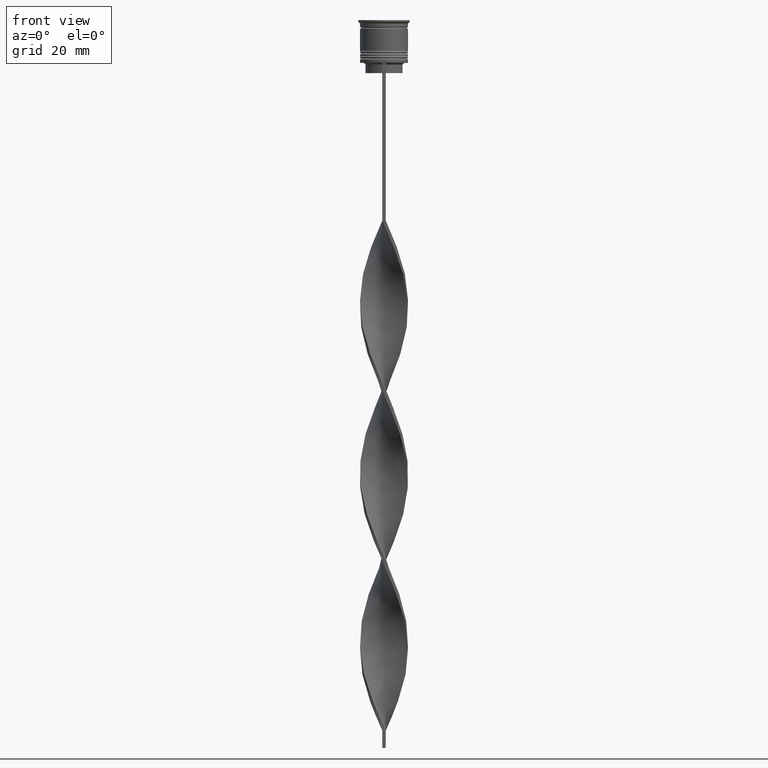
[diagram: clean part render]
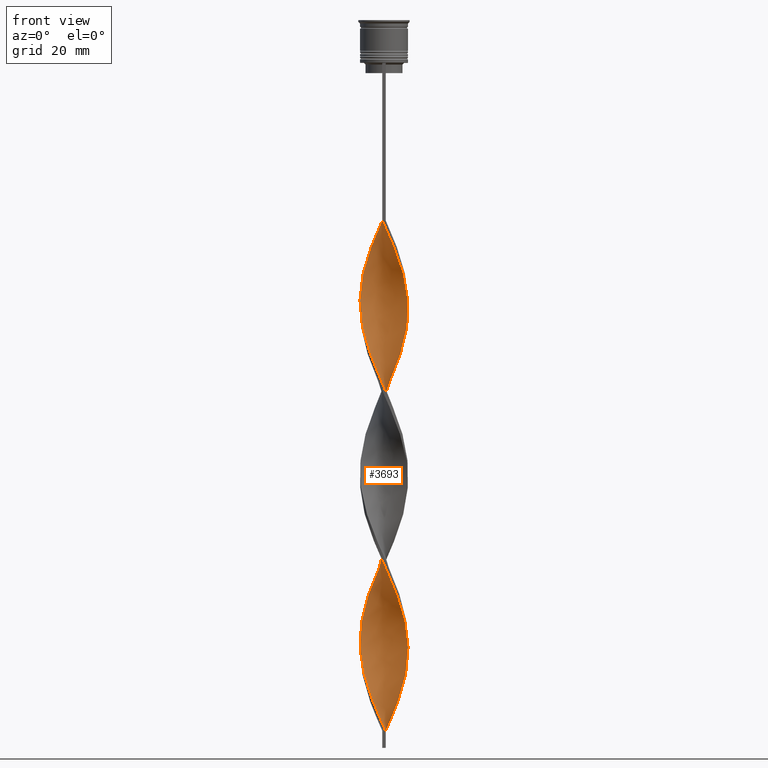
[diagram: same view with one face highlighted and labeled with its STEP entity id]
A machine part, front view. The second image highlights one B-rep face of the part: STEP entity #3693.
In plain terms, the highlighted face is a freeform B-spline surface patch.
Its self-contained STEP definition (entity closure, byte-faithful):
#8 = CARTESIAN_POINT ( 'NONE',  ( -7.029988692409723683, -0.5021420494578368032, -83.33333333333332860 ) ) ;
#10 = CARTESIAN_POINT ( 'NONE',  ( 5.085373964136232772, -4.836214598721336522, -119.8529411764705799 ) ) ;
#16 = CARTESIAN_POINT ( 'NONE',  ( -6.736663859307484792, -2.071291312187307554, -138.8431372549019329 ) ) ;
#30 = CARTESIAN_POINT ( 'NONE',  ( -2.994927778012249409, 6.346684772736916891, -64.34313725490196134 ) ) ;
#34 = CARTESIAN_POINT ( 'NONE',  ( -2.994927778012248520, -6.346684772736912450, -151.9901960784313530 ) ) ;
#43 = CARTESIAN_POINT ( 'NONE',  ( -6.373874598089927623, -3.007758344858554977, -89.17647058823527573 ) ) ;
#46 = CARTESIAN_POINT ( 'NONE',  ( -1.440874626053876728, -6.899041090270183751, -203.1176470588235361 ) ) ;
#49 = CARTESIAN_POINT ( 'NONE',  ( 0.7947600748740408783, -6.972686456695594615, -160.7549019607842808 ) ) ;
#61 = CARTESIAN_POINT ( 'NONE',  ( -6.736663859307489233, 2.071291312187312439, -77.49019607843138147 ) ) ;
#63 = CARTESIAN_POINT ( 'NONE',  ( -6.241360575439927949, 3.273882377329165205, -173.9019607843137294 ) ) ;
#67 = CARTESIAN_POINT ( 'NONE',  ( -5.712673125104407390, 4.127741927368045793, -124.2352941176470580 ) ) ;
#80 = CARTESIAN_POINT ( 'NONE',  ( 2.406820825421679189, 6.624205700879066683, -203.1176470588235361 ) ) ;
#85 = CARTESIAN_POINT ( 'NONE',  ( -5.284803272772045979, 4.617451068294913696, -122.7745098039215605 ) ) ;
#101 = CARTESIAN_POINT ( 'NONE',  ( 7.029988692409719242, -0.5021420494578376914, -83.33333333333332860 ) ) ;
#117 = CARTESIAN_POINT ( 'NONE',  ( 6.595948007173689120, -2.396553752090988088, -78.95098039215686470 ) ) ;
#131 =( BOUNDED_CURVE ( )  B_SPLINE_CURVE ( 2, ( #3517, #1976, #1147, #2894, #2640, #177, #2038, #1682, #2619, #3474, #2870, #1387, #852, #3186, #2574, #540, #3844, #202, #1414, #492, #2600, #226, #2013, #3802, #2349, #3495, #2308, #807, #518, #2055, #3252, #1728, #2916, #1748, #1436, #3820, #1122, #244, #1516, #2923, #2355, #250, #10, #306, #875, #2999, #2371, #1158, #2103, #2059, #2965, #3258, #2120, #898, #3605, #1194, #2044, #3871, #1218, #528, #1756, #2626, #560, #1733, #2334, #2944, #1774, #291, #271, #1482, #2078, #3279, #584, #3887, #605, #2702, #3672, #2169, #2726, #63, #983, #3016, #2426, #3068, #1001, #1235, #1552, #1849, #3374, #1602, #930, #1266, #3040, #344, #2458, #3656, #2741, #966, #3360, #46, #2152, #3345, #707 ),
 .UNSPECIFIED., .F., .T. ) 
 B_SPLINE_CURVE_WITH_KNOTS ( ( 3, 2, 2, 2, 2, 2, 2, 2, 2, 2, 2, 2, 2, 2, 2, 2, 2, 2, 2, 2, 2, 2, 2, 2, 2, 2, 2, 2, 2, 2, 2, 2, 2, 2, 2, 2, 2, 2, 2, 2, 2, 2, 2, 2, 2, 2, 2, 2, 2, 2, 2, 3 ),
 ( 0.000000000000000000, 0.01470588235294117453, 0.02941176470588234906, 0.04411764705882353227, 0.05882352941176469813, 0.07352941176470588480, 0.08823529411764706454, 0.1029411764705882443, 0.1176470588235293963, 0.1323529411764705899, 0.1470588235294117696, 0.1617647058823529493, 0.1764705882352941291, 0.1911764705882352811, 0.2058823529411764885, 0.2205882352941176405, 0.2352941176470587925, 0.2500000000000000000, 0.2647058823529411797, 0.2794117647058823595, 0.2941176470588235392, 0.3088235294117647189, 0.3235294117647058987, 0.3382352941176470229, 0.3529411764705882582, 0.3676470588235294379, 0.3823529411764705621, 0.3970588235294117418, 0.4117647058823529771, 0.4264705882352941013, 0.4411764705882352811, 0.4558823529411764608, 0.4705882352941175850, 0.4852941176470588203, 0.5000000000000000000, 0.5147058823529411242, 0.5294117647058823595, 0.5441176470588234837, 0.5588235294117647189, 0.5735294117647058432, 0.5882352941176470784, 0.6029411764705882026, 0.6176470588235294379, 0.6323529411764705621, 0.6470588235294117974, 0.6617647058823529216, 0.6764705882352940458, 0.6911764705882351700, 0.7058823529411765163, 0.7205882352941176405, 0.7352941176470588758, 0.7500000000000000000 ),
 .UNSPECIFIED. ) 
 CURVE ( )  GEOMETRIC_REPRESENTATION_ITEM ( )  RATIONAL_B_SPLINE_CURVE ( ( 1.000000000000000000, 0.9957341762950344677, 1.000000000000000000, 0.9957341762950344677, 1.000000000000000000, 0.9957341762950344677, 1.000000000000000000, 0.9957341762950344677, 1.000000000000000000, 0.9957341762950344677, 1.000000000000000000, 0.9957341762950344677, 1.000000000000000000, 0.9957341762950344677, 1.000000000000000000, 0.9957341762950344677, 1.000000000000000000, 0.9957341762950344677, 1.000000000000000000, 0.9957341762950344677, 1.000000000000000000, 0.9957341762950344677, 1.000000000000000000, 0.9957341762950344677, 1.000000000000000000, 0.9957341762950344677, 1.000000000000000000, 0.9957341762950344677, 1.000000000000000000, 0.9957341762950344677, 1.000000000000000000, 0.9957341762950344677, 1.000000000000000000, 0.9957341762950344677, 1.000000000000000000, 0.9957341762950344677, 1.000000000000000000, 0.9957341762950344677, 1.000000000000000000, 0.9957341762950344677, 1.000000000000000000, 0.9957341762950344677, 1.000000000000000000, 0.9957341762950344677, 1.000000000000000000, 0.9957341762950344677, 1.000000000000000000, 0.9957341762950344677, 1.000000000000000000, 0.9957341762950344677, 1.000000000000000000, 0.9957341762950344677, 1.000000000000000000, 0.9957341762950344677, 1.000000000000000000, 0.9957341762950344677, 1.000000000000000000, 0.9957341762950344677, 1.000000000000000000, 0.9957341762950344677, 1.000000000000000000, 0.9957341762950344677, 1.000000000000000000, 0.9957341762950344677, 1.000000000000000000, 0.9957341762950344677, 1.000000000000000000, 0.9957341762950344677, 1.000000000000000000, 0.9957341762950344677, 1.000000000000000000, 0.9957341762950344677, 1.000000000000000000, 0.9957341762950344677, 1.000000000000000000, 0.9957341762950344677, 1.000000000000000000, 0.9957341762950344677, 1.000000000000000000, 0.9957341762950344677, 1.000000000000000000, 0.9957341762950344677, 1.000000000000000000, 0.9957341762950344677, 1.000000000000000000, 0.9957341762950344677, 1.000000000000000000, 0.9957341762950344677, 1.000000000000000000, 0.9957341762950344677, 1.000000000000000000, 0.9957341762950344677, 1.000000000000000000, 0.9957341762950344677, 1.000000000000000000, 0.9957341762950344677, 1.000000000000000000, 0.9957341762950344677, 1.000000000000000000, 0.9957341762950344677, 1.000000000000000000, 0.9957341762950344677, 1.000000000000000000 ) ) 
 REPRESENTATION_ITEM ( '' )  );
#142 = CARTESIAN_POINT ( 'NONE',  ( 1.440874626053873842, -6.899041090270179311, -62.88235294117647811 ) ) ;
#150 = VERTEX_POINT ( 'NONE', #965 ) ;
#156 = CARTESIAN_POINT ( 'NONE',  ( -4.637232685409779620, 5.307443892742487179, -168.0588235294117680 ) ) ;
#161 = CARTESIAN_POINT ( 'NONE',  ( 6.489012217373702818, 2.672586844758234825, -189.9705882352941160 ) ) ;
#176 = CARTESIAN_POINT ( 'NONE',  ( 1.440874626053877616, 6.899041090270182863, -153.4509803921568789 ) ) ;
#177 = CARTESIAN_POINT ( 'NONE',  ( -3.583034730602820961, 6.069163844594761770, -65.80392156862745878 ) ) ;
#183 = CARTESIAN_POINT ( 'NONE',  ( 6.924005054333587594, -1.143745604390631110, -181.2058823529411598 ) ) ;
#202 = CARTESIAN_POINT ( 'NONE',  ( -7.029988692409724571, -0.5021420494578368032, -83.33333333333332860 ) ) ;
#208 = CARTESIAN_POINT ( 'NONE',  ( -4.110133708006299180, -5.688303868668616481, -149.0686274509803866 ) ) ;
#226 = CARTESIAN_POINT ( 'NONE',  ( -6.373874598089927623, -3.007758344858554977, -89.17647058823528994 ) ) ;
#229 = CARTESIAN_POINT ( 'NONE',  ( 7.002558135184062671, 0.7981649056490307537, -185.5882352941176237 ) ) ;
#244 = CARTESIAN_POINT ( 'NONE',  ( 2.406820825421679189, -6.624205700879072012, -112.5490196078431495 ) ) ;
#247 = CARTESIAN_POINT ( 'NONE',  ( 5.085373964136230107, 4.836214598721332081, -195.8137254901960773 ) ) ;
#250 = CARTESIAN_POINT ( 'NONE',  ( 4.637232685409777844, -5.307443892742488067, -118.3921568627451109 ) ) ;
#254 = CARTESIAN_POINT ( 'NONE',  ( -0.5000000000000000000, -6.999999999999997335, -58.50000000000000000 ) ) ;
#268 = CARTESIAN_POINT ( 'NONE',  ( 0.1486455236942082203, -7.046331823121012583, -159.2941176470588118 ) ) ;
#271 = CARTESIAN_POINT ( 'NONE',  ( -0.5000000000000000000, 7.000000000000002665, -157.8333333333333144 ) ) ;
#280 = VERTEX_POINT ( 'NONE', #2325 ) ;
#288 = CARTESIAN_POINT ( 'NONE',  ( -3.583034730602816964, -6.069163844594757329, -150.5294117647058840 ) ) ;
#291 = CARTESIAN_POINT ( 'NONE',  ( 0.1486455236942084146, 7.046331823121019688, -156.3725490196078454 ) ) ;
#294 = EDGE_CURVE ( 'NONE', #2969, #280, #131, .T. ) ;
#303 = CARTESIAN_POINT ( 'NONE',  ( 1.777733174557942331, -6.788936938879031047, -111.0882352941176379 ) ) ;
#306 = CARTESIAN_POINT ( 'NONE',  ( 5.533515242862686812, -4.364985304700187640, -121.3137254901960773 ) ) ;
#311 = CARTESIAN_POINT ( 'NONE',  ( 6.924005054333587594, -1.143745604390631110, -81.87254901960783116 ) ) ;
#322 = CARTESIAN_POINT ( 'NONE',  ( 6.043273861597169727, 3.567750136113302162, -140.3039215686274588 ) ) ;
#329 = CARTESIAN_POINT ( 'NONE',  ( -5.085373964136228331, -4.836214598721334745, -146.1470588235294201 ) ) ;
#341 = CARTESIAN_POINT ( 'NONE',  ( 5.887437909151305604, -3.819433841014677533, -122.7745098039215605 ) ) ;
#344 = CARTESIAN_POINT ( 'NONE',  ( -4.856933420439688120, -5.107160209221786928, -194.3529411764705799 ) ) ;
#347 = CARTESIAN_POINT ( 'NONE',  ( -1.148645523694208137, -6.953668176878983864, -156.3725490196078454 ) ) ;
#358 = CARTESIAN_POINT ( 'NONE',  ( 6.595948007173694450, 2.396553752090989864, -137.3823529411764639 ) ) ;
#359 = ORIENTED_EDGE ( 'NONE', *, *, #294, .T. ) ;
#361 = CARTESIAN_POINT ( 'NONE',  ( 6.595948007173689120, -2.396553752090988088, -78.95098039215686470 ) ) ;
#369 = CARTESIAN_POINT ( 'NONE',  ( 2.994927778012250741, -6.346684772736916003, -114.0098039215686185 ) ) ;
#374 = CARTESIAN_POINT ( 'NONE',  ( -2.062455548607892375, 6.707926438924063817, -114.0098039215686185 ) ) ;
#390 = CARTESIAN_POINT ( 'NONE',  ( -6.043273861597169727, -3.567750136113299941, -189.9705882352941160 ) ) ;
#391 = VERTEX_POINT ( 'NONE', #1568 ) ;
#396 = CARTESIAN_POINT ( 'NONE',  ( 5.533515242862682371, 4.364985304700184976, -194.3529411764705799 ) ) ;
#406 = CARTESIAN_POINT ( 'NONE',  ( -5.085373964136232772, 4.836214598721336522, -169.5196078431372371 ) ) ;
#411 = CARTESIAN_POINT ( 'NONE',  ( 4.346365046915568797, -5.509910242367891620, -70.18627450980390847 ) ) ;
#424 = CARTESIAN_POINT ( 'NONE',  ( 3.835796673391459688, 5.912660275514002528, -147.6078431372548891 ) ) ;
#431 = CARTESIAN_POINT ( 'NONE',  ( 5.712673125104408278, -4.127741927368044017, -173.9019607843137294 ) ) ;
#433 = B_SPLINE_CURVE_WITH_KNOTS ( 'NONE', 3,
 ( #2406, #3599, #2113, #2145 ),
 .UNSPECIFIED., .F., .F.,
 ( 4, 4 ),
 ( 0.000000000000000000, 1.000000000000000000 ),
 .UNSPECIFIED. ) ;
#454 = VECTOR ( 'NONE', #2339, 1000.000000000000000 ) ;
#459 = CARTESIAN_POINT ( 'NONE',  ( 0.1486455236942082203, -7.046331823121012583, -59.96078431372549744 ) ) ;
#474 = CARTESIAN_POINT ( 'NONE',  ( -6.373874598089927623, -3.007758344858554977, -188.5098039215686185 ) ) ;
#479 = CARTESIAN_POINT ( 'NONE',  ( 6.736663859307483904, 2.071291312187309774, -188.5098039215686185 ) ) ;
#492 = CARTESIAN_POINT ( 'NONE',  ( -6.818021416257463940, -1.785349159323426527, -86.25490196078432348 ) ) ;
#497 = CARTESIAN_POINT ( 'NONE',  ( 0.5000000000000008882, 6.999999999999997335, -108.1666666666666572 ) ) ;
#518 = CARTESIAN_POINT ( 'NONE',  ( -3.259916572276684299, -6.214736031545979422, -99.40196078431372939 ) ) ;
#523 = CARTESIAN_POINT ( 'NONE',  ( 6.043273861597165286, -3.567750136113298165, -175.3627450980391984 ) ) ;
#528 = CARTESIAN_POINT ( 'NONE',  ( 4.856933420439687232, 5.107160209221788705, -144.6862745098039227 ) ) ;
#538 = CARTESIAN_POINT ( 'NONE',  ( -0.5000000000000000000, 7.000000000000002665, -58.50000000000000000 ) ) ;
#540 = CARTESIAN_POINT ( 'NONE',  ( -7.002558135184068888, 0.7981649056490309757, -80.41176470588234793 ) ) ;
#543 = CARTESIAN_POINT ( 'NONE',  ( 5.712673125104408278, -4.127741927368044905, -173.9019607843137294 ) ) ;
#559 = CARTESIAN_POINT ( 'NONE',  ( -3.835796673391454803, 5.912660275514000752, -118.3921568627451109 ) ) ;
#560 = CARTESIAN_POINT ( 'NONE',  ( 3.259916572276687852, 6.214736031545977646, -149.0686274509803866 ) ) ;
#580 = CARTESIAN_POINT ( 'NONE',  ( -1.440874626053873842, 6.899041090270179311, -112.5490196078431495 ) ) ;
#584 = CARTESIAN_POINT ( 'NONE',  ( -2.994927778012249409, 6.346684772736916891, -163.6764705882352757 ) ) ;
#602 = CARTESIAN_POINT ( 'NONE',  ( -4.346365046915573238, -5.509910242367893396, -96.48039215686274872 ) ) ;
#605 = CARTESIAN_POINT ( 'NONE',  ( -4.110133708006299180, 5.688303868668623586, -166.5980392156862706 ) ) ;
#608 = CARTESIAN_POINT ( 'NONE',  ( 4.856933420439684568, -5.107160209221783376, -71.64705882352942012 ) ) ;
#617 = CARTESIAN_POINT ( 'NONE',  ( -6.869610997245777284, 1.434728108918170708, -78.95098039215686470 ) ) ;
#621 = CARTESIAN_POINT ( 'NONE',  ( -7.016273413796890956, -0.1480114280955932282, -134.4607843137254974 ) ) ;
#636 = CARTESIAN_POINT ( 'NONE',  ( -4.110133708006299180, 5.688303868668623586, -67.26470588235292780 ) ) ;
#642 = CARTESIAN_POINT ( 'NONE',  ( -2.406820825421679633, -6.624205700879066683, -153.4509803921568789 ) ) ;
#652 = CARTESIAN_POINT ( 'NONE',  ( -4.856933420439688120, -5.107160209221786928, -95.01960784313725128 ) ) ;
#654 = CARTESIAN_POINT ( 'NONE',  ( -6.043273861597166174, 3.567750136113296389, -125.6960784313725412 ) ) ;
#668 = CARTESIAN_POINT ( 'NONE',  ( -5.085373964136232772, 4.836214598721336522, -70.18627450980390847 ) ) ;
#672 = CARTESIAN_POINT ( 'NONE',  ( 0.1486455236942082203, -7.046331823121012583, -159.2941176470588118 ) ) ;
#689 = CARTESIAN_POINT ( 'NONE',  ( 2.406820825421679189, 6.624205700879067571, -103.7843137254901791 ) ) ;
#705 = CARTESIAN_POINT ( 'NONE',  ( -5.712673125104412719, -4.127741927368047570, -191.4313725490196134 ) ) ;
#707 = CARTESIAN_POINT ( 'NONE',  ( 0.4999999999999991673, -7.000000000000002665, -207.5000000000000000 ) ) ;
#721 = CARTESIAN_POINT ( 'NONE',  ( -0.7947600748740422105, -6.972686456695599944, -204.5784313725490335 ) ) ;
#725 = CARTESIAN_POINT ( 'NONE',  ( 5.284803272772046867, -4.617451068294912808, -172.4411764705882035 ) ) ;
#745 = CARTESIAN_POINT ( 'NONE',  ( 6.869610997245771955, 1.434728108918170042, -187.0490196078431211 ) ) ;
#773 = CARTESIAN_POINT ( 'NONE',  ( 6.373874598089922294, -3.007758344858553201, -77.49019607843138147 ) ) ;
#792 = CARTESIAN_POINT ( 'NONE',  ( 1.440874626053873842, -6.899041090270179311, -162.2156862745098351 ) ) ;
#807 = CARTESIAN_POINT ( 'NONE',  ( -3.835796673391458800, -5.912660275514003416, -97.94117647058824616 ) ) ;
#811 = CARTESIAN_POINT ( 'NONE',  ( -5.887437909151304716, -3.819433841014671760, -143.2254901960784537 ) ) ;
#837 = CARTESIAN_POINT ( 'NONE',  ( -2.994927778012248520, -6.346684772736912450, -151.9901960784313530 ) ) ;
#852 = CARTESIAN_POINT ( 'NONE',  ( -6.489012217373707259, 2.672586844758237934, -76.02941176470586981 ) ) ;
#855 = CARTESIAN_POINT ( 'NONE',  ( 4.637232685409776067, 5.307443892742482738, -197.2745098039215463 ) ) ;
#862 = CARTESIAN_POINT ( 'NONE',  ( 2.684036471161910242, -6.516811787577953652, -65.80392156862745878 ) ) ;
#872 = CARTESIAN_POINT ( 'NONE',  ( -4.346365046915568797, 5.509910242367891620, -119.8529411764705799 ) ) ;
#875 = CARTESIAN_POINT ( 'NONE',  ( 5.887437909151305604, -3.819433841014677533, -122.7745098039215605 ) ) ;
#896 = CARTESIAN_POINT ( 'NONE',  ( -4.637232685409779620, 5.307443892742487179, -68.72549019607842524 ) ) ;
#898 = CARTESIAN_POINT ( 'NONE',  ( 6.818021416257463940, 1.785349159323427415, -135.9215686274509665 ) ) ;
#903 = CARTESIAN_POINT ( 'NONE',  ( 3.259916572276681634, -6.214736031545974981, -67.26470588235292780 ) ) ;
#912 = CARTESIAN_POINT ( 'NONE',  ( -1.440874626053876728, -6.899041090270183751, -103.7843137254901933 ) ) ;
#917 = CARTESIAN_POINT ( 'NONE',  ( -4.856933420439685456, 5.107160209221782488, -121.3137254901960773 ) ) ;
#927 = CARTESIAN_POINT ( 'NONE',  ( -1.777733174557943663, 6.788936938879031047, -61.42156862745097357 ) ) ;
#930 = CARTESIAN_POINT ( 'NONE',  ( -6.043273861597169727, -3.567750136113299941, -189.9705882352941160 ) ) ;
#934 = CARTESIAN_POINT ( 'NONE',  ( -3.835796673391454359, 5.912660275513999864, -118.3921568627451109 ) ) ;
#946 = CARTESIAN_POINT ( 'NONE',  ( -0.5000000000000000000, 7.000000000000002665, -58.50000000000000000 ) ) ;
#952 = CARTESIAN_POINT ( 'NONE',  ( 4.637232685409776067, 5.307443892742482738, -97.94117647058824616 ) ) ;
#964 = CARTESIAN_POINT ( 'NONE',  ( 4.637232685409778732, -5.307443892742488067, -118.3921568627451109 ) ) ;
#965 = CARTESIAN_POINT ( 'NONE',  ( 0.5000000000000008882, 6.999999999999997335, -207.5000000000000000 ) ) ;
#966 = CARTESIAN_POINT ( 'NONE',  ( -2.684036471161914239, -6.516811787577958093, -200.1960784313725696 ) ) ;
#968 = CARTESIAN_POINT ( 'NONE',  ( -6.489012217373701930, -2.672586844758237490, -140.3039215686274588 ) ) ;
#980 = CARTESIAN_POINT ( 'NONE',  ( -2.684036471161914239, -6.516811787577958093, -200.1960784313725981 ) ) ;
#983 = CARTESIAN_POINT ( 'NONE',  ( -6.489012217373707259, 2.672586844758237934, -175.3627450980391984 ) ) ;
#986 = CARTESIAN_POINT ( 'NONE',  ( -0.1486455236942086366, 7.046331823121012583, -109.6274509803921404 ) ) ;
#999 = CARTESIAN_POINT ( 'NONE',  ( -5.284803272772051308, -4.617451068294915473, -192.8921568627450824 ) ) ;
#1001 = CARTESIAN_POINT ( 'NONE',  ( -7.016273413796895397, 0.1480114280955971418, -181.2058823529411598 ) ) ;
#1005 = CARTESIAN_POINT ( 'NONE',  ( 7.029988692409719242, -0.5021420494578376914, -182.6666666666666856 ) ) ;
#1020 = CARTESIAN_POINT ( 'NONE',  ( -5.533515242862685035, 4.364985304700188529, -170.9803921568627629 ) ) ;
#1024 = CARTESIAN_POINT ( 'NONE',  ( 6.489012217373702818, 2.672586844758234825, -90.63725490196078738 ) ) ;
#1037 = CARTESIAN_POINT ( 'NONE',  ( 2.684036471161911575, 6.516811787577959869, -150.5294117647058840 ) ) ;
#1043 = CARTESIAN_POINT ( 'NONE',  ( 3.835796673391455247, -5.912660275513998975, -168.0588235294117680 ) ) ;
#1059 = CARTESIAN_POINT ( 'NONE',  ( -3.835796673391458800, -5.912660275514003416, -197.2745098039215463 ) ) ;
#1064 = CARTESIAN_POINT ( 'NONE',  ( -0.5000000000000000000, -6.999999999999997335, -58.50000000000000000 ) ) ;
#1089 = CARTESIAN_POINT ( 'NONE',  ( 6.818021416257458611, -1.785349159323424972, -179.7450980392157476 ) ) ;
#1107 = CARTESIAN_POINT ( 'NONE',  ( -7.016273413796890956, -0.1480114280955932282, -134.4607843137254974 ) ) ;
#1112 = CARTESIAN_POINT ( 'NONE',  ( 0.1486455236942082203, -7.046331823121012583, -59.96078431372549034 ) ) ;
#1122 = CARTESIAN_POINT ( 'NONE',  ( 1.777733174557942331, -6.788936938879031047, -111.0882352941176379 ) ) ;
#1126 = CARTESIAN_POINT ( 'NONE',  ( 3.259916572276681634, -6.214736031545974981, -166.5980392156862706 ) ) ;
#1147 = CARTESIAN_POINT ( 'NONE',  ( -1.777733174557943663, 6.788936938879031047, -61.42156862745097357 ) ) ;
#1153 = CARTESIAN_POINT ( 'NONE',  ( -6.489012217373701930, -2.672586844758237490, -140.3039215686274588 ) ) ;
#1158 = CARTESIAN_POINT ( 'NONE',  ( 6.736663859307489233, -2.071291312187312883, -127.1568627450980244 ) ) ;
#1172 = CARTESIAN_POINT ( 'NONE',  ( -7.002558135184062671, -0.7981649056490314198, -135.9215686274509665 ) ) ;
#1192 = CARTESIAN_POINT ( 'NONE',  ( 4.856933420439684568, -5.107160209221783376, -170.9803921568627629 ) ) ;
#1194 = CARTESIAN_POINT ( 'NONE',  ( 6.373874598089928512, 3.007758344858553201, -138.8431372549019329 ) ) ;
#1214 = CARTESIAN_POINT ( 'NONE',  ( 7.002558135184068000, -0.7981649056490286442, -130.0784313725490335 ) ) ;
#1218 = CARTESIAN_POINT ( 'NONE',  ( 5.284803272772052196, 4.617451068294914585, -143.2254901960784537 ) ) ;
#1223 = CARTESIAN_POINT ( 'NONE',  ( 6.489012217373702818, 2.672586844758234825, -90.63725490196078738 ) ) ;
#1234 = CARTESIAN_POINT ( 'NONE',  ( -7.002558135184068000, 0.7981649056490309757, -80.41176470588234793 ) ) ;
#1235 = CARTESIAN_POINT ( 'NONE',  ( -7.029988692409724571, -0.5021420494578368032, -182.6666666666666856 ) ) ;
#1238 = CARTESIAN_POINT ( 'NONE',  ( 6.373874598089922294, -3.007758344858553201, -77.49019607843136725 ) ) ;
#1247 = CARTESIAN_POINT ( 'NONE',  ( 7.029988692409723683, 0.5021420494578359150, -133.0000000000000000 ) ) ;
#1250 = CARTESIAN_POINT ( 'NONE',  ( 1.440874626053873619, -6.899041090270179311, -162.2156862745098351 ) ) ;
#1260 = EDGE_LOOP ( 'NONE', ( #1806, #359, #1863, #3478 ) ) ;
#1263 = CARTESIAN_POINT ( 'NONE',  ( -6.924005054333593812, -1.143745604390630666, -84.79411764705882604 ) ) ;
#1266 = CARTESIAN_POINT ( 'NONE',  ( -5.712673125104412719, -4.127741927368047570, -191.4313725490196134 ) ) ;
#1270 = CARTESIAN_POINT ( 'NONE',  ( 5.712673125104408278, -4.127741927368044017, -74.56862745098038658 ) ) ;
#1283 = CARTESIAN_POINT ( 'NONE',  ( 1.777733174557942775, 6.788936938879025718, -204.5784313725490335 ) ) ;
#1289 = CARTESIAN_POINT ( 'NONE',  ( -7.029988692409719242, 0.5021420494578385796, -133.0000000000000000 ) ) ;
#1300 = CARTESIAN_POINT ( 'NONE',  ( 3.259916572276687852, 6.214736031545977646, -149.0686274509803866 ) ) ;
#1305 = CARTESIAN_POINT ( 'NONE',  ( 4.637232685409776067, 5.307443892742482738, -97.94117647058824616 ) ) ;
#1325 = CARTESIAN_POINT ( 'NONE',  ( 6.373874598089922294, -3.007758344858553201, -176.8235294117647243 ) ) ;
#1349 = FACE_OUTER_BOUND ( 'NONE', #1260, .T. ) ;
#1370 = CARTESIAN_POINT ( 'NONE',  ( 7.002558135184062671, 0.7981649056490307537, -86.25490196078432348 ) ) ;
#1387 = CARTESIAN_POINT ( 'NONE',  ( -6.241360575439927949, 3.273882377329165205, -74.56862745098038658 ) ) ;
#1393 = CARTESIAN_POINT ( 'NONE',  ( 6.043273861597165286, -3.567750136113298165, -175.3627450980391984 ) ) ;
#1414 = CARTESIAN_POINT ( 'NONE',  ( -6.924005054333593812, -1.143745604390630666, -84.79411764705882604 ) ) ;
#1418 = CARTESIAN_POINT ( 'NONE',  ( -0.7947600748740394350, 6.972686456695594615, -111.0882352941176379 ) ) ;
#1436 = CARTESIAN_POINT ( 'NONE',  ( 0.4999999999999991673, -7.000000000000002665, -108.1666666666666572 ) ) ;
#1439 = CARTESIAN_POINT ( 'NONE',  ( 6.241360575439922620, 3.273882377329162985, -191.4313725490196134 ) ) ;
#1455 = CARTESIAN_POINT ( 'NONE',  ( 3.583034730602818296, 6.069163844594755552, -200.1960784313725981 ) ) ;
#1479 = CARTESIAN_POINT ( 'NONE',  ( -2.062455548607892375, 6.707926438924063817, -114.0098039215686185 ) ) ;
#1482 = CARTESIAN_POINT ( 'NONE',  ( -1.148645523694208581, 6.953668176878987417, -159.2941176470588118 ) ) ;
#1496 = CARTESIAN_POINT ( 'NONE',  ( -2.684036471161910242, 6.516811787577953652, -115.4705882352940876 ) ) ;
#1513 = CARTESIAN_POINT ( 'NONE',  ( 4.110133708006299180, -5.688303868668622698, -116.9313725490195992 ) ) ;
#1516 = CARTESIAN_POINT ( 'NONE',  ( 2.994927778012250741, -6.346684772736916003, -114.0098039215686185 ) ) ;
#1521 = CARTESIAN_POINT ( 'NONE',  ( -6.818021416257460388, 1.785349159323422308, -130.0784313725490335 ) ) ;
#1534 = CARTESIAN_POINT ( 'NONE',  ( 5.712673125104412719, 4.127741927368047570, -141.7647058823529562 ) ) ;
#1539 = CARTESIAN_POINT ( 'NONE',  ( -4.637232685409776067, -5.307443892742481850, -147.6078431372548891 ) ) ;
#1550 = CARTESIAN_POINT ( 'NONE',  ( 7.016273413796896286, -0.1480114280955963924, -131.5392156862745310 ) ) ;
#1552 = CARTESIAN_POINT ( 'NONE',  ( -6.924005054333593812, -1.143745604390630666, -184.1274509803921546 ) ) ;
#1555 = CARTESIAN_POINT ( 'NONE',  ( -4.346365046915568797, 5.509910242367891620, -119.8529411764705799 ) ) ;
#1564 = CARTESIAN_POINT ( 'NONE',  ( -0.7947600748740422105, -6.972686456695599944, -105.2450980392156765 ) ) ;
#1567 = CARTESIAN_POINT ( 'NONE',  ( 6.736663859307483904, 2.071291312187309774, -89.17647058823528994 ) ) ;
#1568 = CARTESIAN_POINT ( 'NONE',  ( -0.5000000000000000000, -6.999999999999997335, -58.50000000000000000 ) ) ;
#1583 = CARTESIAN_POINT ( 'NONE',  ( 6.924005054333593812, 1.143745604390628445, -134.4607843137254974 ) ) ;
#1588 = CARTESIAN_POINT ( 'NONE',  ( 6.043273861597165286, -3.567750136113298165, -76.02941176470586981 ) ) ;
#1600 = CARTESIAN_POINT ( 'NONE',  ( -6.818021416257463940, -1.785349159323426527, -185.5882352941176237 ) ) ;
#1602 = CARTESIAN_POINT ( 'NONE',  ( -6.373874598089927623, -3.007758344858554977, -188.5098039215686185 ) ) ;
#1605 = CARTESIAN_POINT ( 'NONE',  ( 5.085373964136230107, 4.836214598721332081, -96.48039215686274872 ) ) ;
#1622 = CARTESIAN_POINT ( 'NONE',  ( 7.016273413796890956, 0.1480114280955957262, -184.1274509803921546 ) ) ;
#1638 = CARTESIAN_POINT ( 'NONE',  ( 0.4999999999999991673, -7.000000000000002665, -207.5000000000000000 ) ) ;
#1644 = CARTESIAN_POINT ( 'NONE',  ( 6.595948007173689120, -2.396553752090988088, -178.2843137254901933 ) ) ;
#1660 = CARTESIAN_POINT ( 'NONE',  ( -4.856933420439688120, -5.107160209221786928, -194.3529411764705799 ) ) ;
#1665 = CARTESIAN_POINT ( 'NONE',  ( 2.684036471161910242, -6.516811787577953652, -65.80392156862747299 ) ) ;
#1681 = CARTESIAN_POINT ( 'NONE',  ( -6.736663859307489233, 2.071291312187312439, -176.8235294117647243 ) ) ;
#1682 = CARTESIAN_POINT ( 'NONE',  ( -4.637232685409778732, 5.307443892742487179, -68.72549019607842524 ) ) ;
#1687 = CARTESIAN_POINT ( 'NONE',  ( 6.924005054333587594, -1.143745604390631110, -81.87254901960783116 ) ) ;
#1708 = CARTESIAN_POINT ( 'NONE',  ( -4.637232685409776956, -5.307443892742481850, -147.6078431372548891 ) ) ;
#1728 = CARTESIAN_POINT ( 'NONE',  ( -1.440874626053876728, -6.899041090270183751, -103.7843137254901791 ) ) ;
#1731 = CARTESIAN_POINT ( 'NONE',  ( 6.924005054333587594, -1.143745604390631110, -181.2058823529411598 ) ) ;
#1733 = CARTESIAN_POINT ( 'NONE',  ( 2.684036471161911575, 6.516811787577958981, -150.5294117647058840 ) ) ;
#1748 = CARTESIAN_POINT ( 'NONE',  ( -0.1486455236942075542, -7.046331823121019688, -106.7058823529411882 ) ) ;
#1751 = CARTESIAN_POINT ( 'NONE',  ( 7.016273413796890956, 0.1480114280955957262, -184.1274509803921546 ) ) ;
#1756 = CARTESIAN_POINT ( 'NONE',  ( 4.346365046915571462, 5.509910242367894284, -146.1470588235294201 ) ) ;
#1773 = CARTESIAN_POINT ( 'NONE',  ( -6.595948007173689120, 2.396553752090990752, -128.6176470588235361 ) ) ;
#1774 = CARTESIAN_POINT ( 'NONE',  ( 0.7947600748740401011, 6.972686456695599944, -154.9117647058823479 ) ) ;
#1781 = CARTESIAN_POINT ( 'NONE',  ( 5.284803272772046867, -4.617451068294912808, -73.10784313725488914 ) ) ;
#1796 = CARTESIAN_POINT ( 'NONE',  ( -6.043273861597166174, 3.567750136113296389, -125.6960784313725412 ) ) ;
#1806 = ORIENTED_EDGE ( 'NONE', *, *, #3581, .T. ) ;
#1813 = CARTESIAN_POINT ( 'NONE',  ( -6.241360575439927061, 3.273882377329165205, -74.56862745098038658 ) ) ;
#1825 = CARTESIAN_POINT ( 'NONE',  ( 1.148645523694209247, -6.953668176878987417, -109.6274509803921546 ) ) ;
#1829 = CARTESIAN_POINT ( 'NONE',  ( 4.110133708006296516, 5.688303868668619145, -99.40196078431372939 ) ) ;
#1846 = CARTESIAN_POINT ( 'NONE',  ( 5.533515242862685923, -4.364985304700187640, -121.3137254901960631 ) ) ;
#1849 = CARTESIAN_POINT ( 'NONE',  ( -6.818021416257463940, -1.785349159323426527, -185.5882352941176237 ) ) ;
#1853 = CARTESIAN_POINT ( 'NONE',  ( -6.241360575439923508, -3.273882377329162985, -141.7647058823529562 ) ) ;
#1863 = ORIENTED_EDGE ( 'NONE', *, *, #3310, .F. ) ;
#1865 = CARTESIAN_POINT ( 'NONE',  ( 0.4999999999999991673, -7.000000000000002665, -108.1666666666666572 ) ) ;
#1869 = CARTESIAN_POINT ( 'NONE',  ( 2.684036471161910242, -6.516811787577953652, -165.1372549019608016 ) ) ;
#1877 = CARTESIAN_POINT ( 'NONE',  ( -3.259916572276684299, -6.214736031545979422, -99.40196078431372939 ) ) ;
#1881 = CARTESIAN_POINT ( 'NONE',  ( 3.259916572276681634, -6.214736031545974981, -166.5980392156862706 ) ) ;
#1902 = CARTESIAN_POINT ( 'NONE',  ( 2.062455548607891487, -6.707926438924064705, -64.34313725490196134 ) ) ;
#1914 = CARTESIAN_POINT ( 'NONE',  ( -4.110133708006299180, 5.688303868668623586, -166.5980392156862706 ) ) ;
#1919 = CARTESIAN_POINT ( 'NONE',  ( 5.712673125104408278, -4.127741927368044905, -74.56862745098038658 ) ) ;
#1931 = CARTESIAN_POINT ( 'NONE',  ( -7.016273413796895397, 0.1480114280955971418, -181.2058823529411598 ) ) ;
#1935 = CARTESIAN_POINT ( 'NONE',  ( 1.777733174557942775, 6.788936938879025718, -105.2450980392156765 ) ) ;
#1951 = CARTESIAN_POINT ( 'NONE',  ( 0.7947600748740401011, 6.972686456695599944, -154.9117647058823479 ) ) ;
#1957 = CARTESIAN_POINT ( 'NONE',  ( 7.002558135184063559, 0.7981649056490307537, -185.5882352941176237 ) ) ;
#1975 = CARTESIAN_POINT ( 'NONE',  ( -1.148645523694208581, 6.953668176878987417, -159.2941176470588118 ) ) ;
#1976 = CARTESIAN_POINT ( 'NONE',  ( -1.148645523694208581, 6.953668176878987417, -59.96078431372549034 ) ) ;
#1981 = CARTESIAN_POINT ( 'NONE',  ( 0.7947600748740408783, -6.972686456695594615, -61.42156862745097357 ) ) ;
#2000 = CARTESIAN_POINT ( 'NONE',  ( -6.736663859307484792, -2.071291312187307998, -138.8431372549019045 ) ) ;
#2013 = CARTESIAN_POINT ( 'NONE',  ( -6.043273861597169727, -3.567750136113299941, -90.63725490196078738 ) ) ;
#2018 = CARTESIAN_POINT ( 'NONE',  ( -1.777733174557940776, -6.788936938879025718, -154.9117647058823479 ) ) ;
#2038 = CARTESIAN_POINT ( 'NONE',  ( -4.110133708006299180, 5.688303868668623586, -67.26470588235292780 ) ) ;
#2041 = CARTESIAN_POINT ( 'NONE',  ( 5.284803272772046867, -4.617451068294912808, -172.4411764705882035 ) ) ;
#2044 = CARTESIAN_POINT ( 'NONE',  ( 6.043273861597169727, 3.567750136113302162, -140.3039215686274588 ) ) ;
#2055 = CARTESIAN_POINT ( 'NONE',  ( -2.684036471161914239, -6.516811787577958093, -100.8627450980392126 ) ) ;
#2057 = CARTESIAN_POINT ( 'NONE',  ( -6.241360575439922620, -3.273882377329162985, -141.7647058823529562 ) ) ;
#2059 = CARTESIAN_POINT ( 'NONE',  ( 7.002558135184068888, -0.7981649056490286442, -130.0784313725490335 ) ) ;
#2075 = CARTESIAN_POINT ( 'NONE',  ( 6.818021416257458611, -1.785349159323424972, -179.7450980392157192 ) ) ;
#2078 = CARTESIAN_POINT ( 'NONE',  ( -1.777733174557943663, 6.788936938879031047, -160.7549019607842808 ) ) ;
#2101 = CARTESIAN_POINT ( 'NONE',  ( -6.595948007173694450, -2.396553752090990752, -87.71568627450979250 ) ) ;
#2103 = CARTESIAN_POINT ( 'NONE',  ( 6.869610997245777284, -1.434728108918172929, -128.6176470588235361 ) ) ;
#2107 = CARTESIAN_POINT ( 'NONE',  ( 3.835796673391455247, -5.912660275513998975, -68.72549019607842524 ) ) ;
#2113 = CARTESIAN_POINT ( 'NONE',  ( 0.4999999999999996669, -2.333333333333336590, -207.5000000000000000 ) ) ;
#2117 = CARTESIAN_POINT ( 'NONE',  ( 2.406820825421679189, -6.624205700879071124, -112.5490196078431495 ) ) ;
#2120 = CARTESIAN_POINT ( 'NONE',  ( 6.924005054333593812, 1.143745604390628445, -134.4607843137254974 ) ) ;
#2123 = CARTESIAN_POINT ( 'NONE',  ( 7.002558135184063559, 0.7981649056490307537, -86.25490196078432348 ) ) ;
#2133 = CARTESIAN_POINT ( 'NONE',  ( -3.583034730602820517, 6.069163844594761770, -65.80392156862747299 ) ) ;
#2137 = CARTESIAN_POINT ( 'NONE',  ( -5.887437909151304716, -3.819433841014671760, -143.2254901960784537 ) ) ;
#2145 = CARTESIAN_POINT ( 'NONE',  ( 0.4999999999999991673, -7.000000000000002665, -207.5000000000000000 ) ) ;
#2149 = CARTESIAN_POINT ( 'NONE',  ( 2.994927778012247632, 6.346684772736912450, -201.6568627450980387 ) ) ;
#2152 = CARTESIAN_POINT ( 'NONE',  ( -0.7947600748740422105, -6.972686456695599944, -204.5784313725490335 ) ) ;
#2156 = CARTESIAN_POINT ( 'NONE',  ( 6.818021416257458611, -1.785349159323424972, -80.41176470588234793 ) ) ;
#2166 = CARTESIAN_POINT ( 'NONE',  ( 6.869610997245777284, -1.434728108918172929, -128.6176470588235361 ) ) ;
#2169 = CARTESIAN_POINT ( 'NONE',  ( -5.533515242862685923, 4.364985304700188529, -170.9803921568627629 ) ) ;
#2172 = CARTESIAN_POINT ( 'NONE',  ( -6.869610997245771955, -1.434728108918169154, -137.3823529411764639 ) ) ;
#2189 = CARTESIAN_POINT ( 'NONE',  ( -6.924005054333588483, 1.143745604390630444, -131.5392156862745310 ) ) ;
#2203 = CARTESIAN_POINT ( 'NONE',  ( -0.5000000000000000000, 7.000000000000002665, -157.8333333333333144 ) ) ;
#2210 = CARTESIAN_POINT ( 'NONE',  ( 4.110133708006296516, 5.688303868668619145, -198.7352941176470722 ) ) ;
#2224 = CARTESIAN_POINT ( 'NONE',  ( -3.259916572276684299, -6.214736031545979422, -198.7352941176470722 ) ) ;
#2229 = CARTESIAN_POINT ( 'NONE',  ( 5.887437909151303828, 3.819433841014672648, -93.55882352941176805 ) ) ;
#2241 = CARTESIAN_POINT ( 'NONE',  ( -6.595948007173694450, -2.396553752090990752, -187.0490196078431211 ) ) ;
#2245 =( BOUNDED_CURVE ( )  B_SPLINE_CURVE ( 2, ( #254, #1112, #2651, #3570, #3553, #862, #903, #2107, #3263, #608, #1781, #1270, #1588, #1238, #361, #2156, #311, #2479, #2461, #2123, #2429, #1567, #1223, #2415, #3675, #3609, #3055, #952, #1829, #2757, #3379, #689, #3659, #3070, #2729, #986, #2778, #3347, #374, #3639, #3623, #934, #1555, #917, #85, #67, #654, #3316, #3004, #1521, #2189, #1289, #621, #2707, #2172, #16, #968, #1853, #2137, #3021, #329, #1539, #3362, #3329, #34, #642, #3043, #347, #2744, #672, #49, #1250, #2443, #1869, #1881, #1043, #3171, #3477, #725, #431, #1393, #1325, #1644, #1089, #183, #1005, #1622, #1957, #745, #479, #161, #3695, #2875, #396, #3718, #2294, #2210, #3110, #3399, #3151, #2832, #2517, #3460 ),
 .UNSPECIFIED., .F., .T. ) 
 B_SPLINE_CURVE_WITH_KNOTS ( ( 3, 2, 2, 2, 2, 2, 2, 2, 2, 2, 2, 2, 2, 2, 2, 2, 2, 2, 2, 2, 2, 2, 2, 2, 2, 2, 2, 2, 2, 2, 2, 2, 2, 2, 2, 2, 2, 2, 2, 2, 2, 2, 2, 2, 2, 2, 2, 2, 2, 2, 2, 3 ),
 ( 0.000000000000000000, 0.01470588235294117453, 0.02941176470588234906, 0.04411764705882353227, 0.05882352941176469813, 0.07352941176470588480, 0.08823529411764706454, 0.1029411764705882443, 0.1176470588235293963, 0.1323529411764705899, 0.1470588235294117696, 0.1617647058823529493, 0.1764705882352941291, 0.1911764705882352811, 0.2058823529411764885, 0.2205882352941176405, 0.2352941176470587925, 0.2500000000000000000, 0.2647058823529411797, 0.2794117647058823595, 0.2941176470588235392, 0.3088235294117647189, 0.3235294117647058987, 0.3382352941176470229, 0.3529411764705882582, 0.3676470588235294379, 0.3823529411764705621, 0.3970588235294117418, 0.4117647058823529771, 0.4264705882352941013, 0.4411764705882352811, 0.4558823529411764608, 0.4705882352941175850, 0.4852941176470588203, 0.5000000000000000000, 0.5147058823529411242, 0.5294117647058823595, 0.5441176470588234837, 0.5588235294117647189, 0.5735294117647058432, 0.5882352941176470784, 0.6029411764705882026, 0.6176470588235294379, 0.6323529411764705621, 0.6470588235294117974, 0.6617647058823529216, 0.6764705882352940458, 0.6911764705882351700, 0.7058823529411765163, 0.7205882352941176405, 0.7352941176470588758, 0.7500000000000000000 ),
 .UNSPECIFIED. ) 
 CURVE ( )  GEOMETRIC_REPRESENTATION_ITEM ( )  RATIONAL_B_SPLINE_CURVE ( ( 1.000000000000000000, 0.9957341762950344677, 1.000000000000000000, 0.9957341762950344677, 1.000000000000000000, 0.9957341762950344677, 1.000000000000000000, 0.9957341762950344677, 1.000000000000000000, 0.9957341762950344677, 1.000000000000000000, 0.9957341762950344677, 1.000000000000000000, 0.9957341762950344677, 1.000000000000000000, 0.9957341762950344677, 1.000000000000000000, 0.9957341762950344677, 1.000000000000000000, 0.9957341762950344677, 1.000000000000000000, 0.9957341762950344677, 1.000000000000000000, 0.9957341762950344677, 1.000000000000000000, 0.9957341762950344677, 1.000000000000000000, 0.9957341762950344677, 1.000000000000000000, 0.9957341762950344677, 1.000000000000000000, 0.9957341762950344677, 1.000000000000000000, 0.9957341762950344677, 1.000000000000000000, 0.9957341762950344677, 1.000000000000000000, 0.9957341762950344677, 1.000000000000000000, 0.9957341762950344677, 1.000000000000000000, 0.9957341762950344677, 1.000000000000000000, 0.9957341762950344677, 1.000000000000000000, 0.9957341762950344677, 1.000000000000000000, 0.9957341762950344677, 1.000000000000000000, 0.9957341762950344677, 1.000000000000000000, 0.9957341762950344677, 1.000000000000000000, 0.9957341762950344677, 1.000000000000000000, 0.9957341762950344677, 1.000000000000000000, 0.9957341762950344677, 1.000000000000000000, 0.9957341762950344677, 1.000000000000000000, 0.9957341762950344677, 1.000000000000000000, 0.9957341762950344677, 1.000000000000000000, 0.9957341762950344677, 1.000000000000000000, 0.9957341762950344677, 1.000000000000000000, 0.9957341762950344677, 1.000000000000000000, 0.9957341762950344677, 1.000000000000000000, 0.9957341762950344677, 1.000000000000000000, 0.9957341762950344677, 1.000000000000000000, 0.9957341762950344677, 1.000000000000000000, 0.9957341762950344677, 1.000000000000000000, 0.9957341762950344677, 1.000000000000000000, 0.9957341762950344677, 1.000000000000000000, 0.9957341762950344677, 1.000000000000000000, 0.9957341762950344677, 1.000000000000000000, 0.9957341762950344677, 1.000000000000000000, 0.9957341762950344677, 1.000000000000000000, 0.9957341762950344677, 1.000000000000000000, 0.9957341762950344677, 1.000000000000000000, 0.9957341762950344677, 1.000000000000000000, 0.9957341762950344677, 1.000000000000000000, 0.9957341762950344677, 1.000000000000000000 ) ) 
 REPRESENTATION_ITEM ( '' )  );
#2247 = CARTESIAN_POINT ( 'NONE',  ( 4.856933420439684568, -5.107160209221783376, -71.64705882352943433 ) ) ;
#2265 = CARTESIAN_POINT ( 'NONE',  ( -1.777733174557943663, 6.788936938879031047, -160.7549019607842808 ) ) ;
#2271 = CARTESIAN_POINT ( 'NONE',  ( 4.110133708006296516, 5.688303868668619145, -99.40196078431372939 ) ) ;
#2294 = CARTESIAN_POINT ( 'NONE',  ( 4.637232685409776067, 5.307443892742482738, -197.2745098039215463 ) ) ;
#2308 = CARTESIAN_POINT ( 'NONE',  ( -4.346365046915573238, -5.509910242367893396, -96.48039215686274872 ) ) ;
#2311 = CARTESIAN_POINT ( 'NONE',  ( 6.373874598089922294, -3.007758344858553201, -176.8235294117647243 ) ) ;
#2325 = CARTESIAN_POINT ( 'NONE',  ( 0.4999999999999991673, -7.000000000000002665, -207.5000000000000000 ) ) ;
#2330 = CARTESIAN_POINT ( 'NONE',  ( 5.887437909151303828, 3.819433841014672648, -192.8921568627450824 ) ) ;
#2334 = CARTESIAN_POINT ( 'NONE',  ( 2.062455548607894151, 6.707926438924069146, -151.9901960784313530 ) ) ;
#2339 = DIRECTION ( 'NONE',  ( 0.000000000000000000, 1.000000000000000000, 0.000000000000000000 ) ) ;
#2349 = CARTESIAN_POINT ( 'NONE',  ( -5.284803272772051308, -4.617451068294915473, -93.55882352941176805 ) ) ;
#2353 = CARTESIAN_POINT ( 'NONE',  ( 6.736663859307483904, 2.071291312187309774, -188.5098039215686185 ) ) ;
#2355 = CARTESIAN_POINT ( 'NONE',  ( 4.110133708006299180, -5.688303868668622698, -116.9313725490195992 ) ) ;
#2368 = CARTESIAN_POINT ( 'NONE',  ( 4.346365046915568797, -5.509910242367891620, -169.5196078431372371 ) ) ;
#2371 = CARTESIAN_POINT ( 'NONE',  ( 6.489012217373708147, -2.672586844758236158, -125.6960784313725412 ) ) ;
#2389 = CARTESIAN_POINT ( 'NONE',  ( -0.5000000000000000000, -6.999999999999997335, -157.8333333333333144 ) ) ;
#2406 = CARTESIAN_POINT ( 'NONE',  ( 0.5000000000000008882, 6.999999999999997335, -207.5000000000000000 ) ) ;
#2411 = CARTESIAN_POINT ( 'NONE',  ( -7.016273413796895397, 0.1480114280955971418, -81.87254901960783116 ) ) ;
#2415 = CARTESIAN_POINT ( 'NONE',  ( 6.241360575439923508, 3.273882377329162985, -92.09803921568628482 ) ) ;
#2424 = CARTESIAN_POINT ( 'NONE',  ( 3.583034730602819629, -6.069163844594761770, -115.4705882352940876 ) ) ;
#2426 = CARTESIAN_POINT ( 'NONE',  ( -6.869610997245777284, 1.434728108918170708, -178.2843137254901933 ) ) ;
#2429 = CARTESIAN_POINT ( 'NONE',  ( 6.869610997245771955, 1.434728108918170042, -87.71568627450979250 ) ) ;
#2439 = CARTESIAN_POINT ( 'NONE',  ( -5.887437909151306492, 3.819433841014676645, -73.10784313725488914 ) ) ;
#2443 = CARTESIAN_POINT ( 'NONE',  ( 2.062455548607891487, -6.707926438924064705, -163.6764705882352757 ) ) ;
#2454 = CARTESIAN_POINT ( 'NONE',  ( -6.818021416257463940, -1.785349159323426527, -86.25490196078432348 ) ) ;
#2458 = CARTESIAN_POINT ( 'NONE',  ( -4.346365046915573238, -5.509910242367893396, -195.8137254901960773 ) ) ;
#2461 = CARTESIAN_POINT ( 'NONE',  ( 7.016273413796890956, 0.1480114280955957262, -84.79411764705882604 ) ) ;
#2473 = CARTESIAN_POINT ( 'NONE',  ( -6.241360575439927061, 3.273882377329165205, -173.9019607843137294 ) ) ;
#2479 = CARTESIAN_POINT ( 'NONE',  ( 7.029988692409719242, -0.5021420494578376914, -83.33333333333332860 ) ) ;
#2494 = CARTESIAN_POINT ( 'NONE',  ( 2.406820825421679189, 6.624205700879066683, -103.7843137254901933 ) ) ;
#2517 = CARTESIAN_POINT ( 'NONE',  ( 1.148645523694207471, 6.953668176878983864, -206.0392156862745026 ) ) ;
#2535 = CARTESIAN_POINT ( 'NONE',  ( 4.346365046915571462, 5.509910242367894284, -146.1470588235294201 ) ) ;
#2540 = CARTESIAN_POINT ( 'NONE',  ( 3.259916572276681634, -6.214736031545974981, -67.26470588235292780 ) ) ;
#2553 = CARTESIAN_POINT ( 'NONE',  ( 0.1486455236942084146, 7.046331823121019688, -156.3725490196078454 ) ) ;
#2560 = CARTESIAN_POINT ( 'NONE',  ( 6.736663859307483904, 2.071291312187309774, -89.17647058823527573 ) ) ;
#2574 = CARTESIAN_POINT ( 'NONE',  ( -6.869610997245777284, 1.434728108918170708, -78.95098039215686470 ) ) ;
#2579 = CARTESIAN_POINT ( 'NONE',  ( 6.043273861597165286, -3.567750136113298165, -76.02941176470586981 ) ) ;
#2600 = CARTESIAN_POINT ( 'NONE',  ( -6.595948007173694450, -2.396553752090990752, -87.71568627450979250 ) ) ;
#2604 = CARTESIAN_POINT ( 'NONE',  ( -5.284803272772045979, 4.617451068294913696, -122.7745098039215605 ) ) ;
#2619 = CARTESIAN_POINT ( 'NONE',  ( -5.085373964136232772, 4.836214598721336522, -70.18627450980390847 ) ) ;
#2622 = CARTESIAN_POINT ( 'NONE',  ( -3.259916572276682523, 6.214736031545974093, -116.9313725490195992 ) ) ;
#2626 = CARTESIAN_POINT ( 'NONE',  ( 3.835796673391459688, 5.912660275514002528, -147.6078431372548891 ) ) ;
#2640 = CARTESIAN_POINT ( 'NONE',  ( -2.994927778012249409, 6.346684772736916891, -64.34313725490196134 ) ) ;
#2644 = CARTESIAN_POINT ( 'NONE',  ( 4.110133708006296516, 5.688303868668619145, -198.7352941176470722 ) ) ;
#2651 = CARTESIAN_POINT ( 'NONE',  ( 0.7947600748740408783, -6.972686456695594615, -61.42156862745097357 ) ) ;
#2655 =( BOUNDED_SURFACE ( )  B_SPLINE_SURFACE ( 1, 2, ( 
 ( #1064, #459, #1981, #142, #1902, #1665, #2540, #3738, #411, #2247, #3433, #1919, #2579, #773, #117, #3094, #1687, #101, #2852, #1370, #2808, #2560, #1024, #3761, #2229, #3413, #1605, #1305, #2271, #3784, #2792, #2494, #1935, #3126, #497, #2898, #1418, #580, #1479, #1496, #2622, #559, #872, #3824, #2604, #3236, #1796, #3254, #1773, #2985, #3190, #3498, #1107, #1172, #3563, #2000, #1153, #2057, #811, #3545, #2961, #1708, #208, #288, #837, #2682, #2018, #2665, #2389, #268, #2920, #792, #3213, #3886, #1126, #3805, #2368, #1192, #2041, #543, #523, #2311, #3849, #2075, #1731, #3522, #1751, #229, #3276, #2353, #3868, #1439, #2330, #2940, #247, #855, #2644, #1455, #2149, #80, #1283, #3053, #3654 ),
 ( #946, #3324, #927, #3296, #30, #2133, #636, #896, #668, #2754, #2439, #1813, #3038, #61, #617, #1234, #2411, #8, #1263, #2454, #2101, #43, #3342, #3604, #3634, #652, #602, #2996, #1877, #3619, #3358, #912, #1564, #3584, #1865, #1825, #303, #2117, #369, #2424, #1513, #964, #3064, #1846, #341, #3312, #2699, #2739, #2166, #1214, #1550, #1247, #1583, #2773, #358, #3014, #322, #1534, #2723, #3088, #2535, #424, #1300, #1037, #2869, #176, #1951, #2553, #2203, #1975, #2265, #2826, #3755, #3122, #1914, #156, #406, #1020, #2803, #2473, #2847, #1681, #3145, #2786, #1931, #3167, #3669, #1600, #2241, #474, #390, #705, #999, #1660, #3428, #1059, #2224, #980, #3732, #3408, #721, #3688, #1638 ) ),
 .UNSPECIFIED., .F., .F., .T. ) 
 B_SPLINE_SURFACE_WITH_KNOTS ( ( 2, 2 ),
 ( 3, 2, 2, 2, 2, 2, 2, 2, 2, 2, 2, 2, 2, 2, 2, 2, 2, 2, 2, 2, 2, 2, 2, 2, 2, 2, 2, 2, 2, 2, 2, 2, 2, 2, 2, 2, 2, 2, 2, 2, 2, 2, 2, 2, 2, 2, 2, 2, 2, 2, 2, 3 ),
 ( 0.000000000000000000, 1.000000000000000000 ),
 ( 0.000000000000000000, 0.01470588235294117627, 0.02941176470588235253, 0.04411764705882353227, 0.05882352941176470507, 0.07352941176470588480, 0.08823529411764706454, 0.1029411764705882304, 0.1176470588235294101, 0.1323529411764705899, 0.1470588235294117696, 0.1617647058823529493, 0.1764705882352941291, 0.1911764705882352811, 0.2058823529411764608, 0.2205882352941176405, 0.2352941176470588203, 0.2500000000000000000, 0.2647058823529411797, 0.2794117647058823595, 0.2941176470588235392, 0.3088235294117647189, 0.3235294117647058987, 0.3382352941176470784, 0.3529411764705882582, 0.3676470588235294379, 0.3823529411764705621, 0.3970588235294117418, 0.4117647058823529216, 0.4264705882352941013, 0.4411764705882352811, 0.4558823529411764608, 0.4705882352941176405, 0.4852941176470588203, 0.5000000000000000000, 0.5147058823529411242, 0.5294117647058823595, 0.5441176470588234837, 0.5588235294117647189, 0.5735294117647058432, 0.5882352941176470784, 0.6029411764705882026, 0.6176470588235294379, 0.6323529411764705621, 0.6470588235294117974, 0.6617647058823529216, 0.6764705882352941568, 0.6911764705882352811, 0.7058823529411765163, 0.7205882352941176405, 0.7352941176470588758, 0.7500000000000000000 ),
 .UNSPECIFIED. ) 
 GEOMETRIC_REPRESENTATION_ITEM ( )  RATIONAL_B_SPLINE_SURFACE ( (
 ( 1.000000000000000000, 0.9957341762950344677, 1.000000000000000000, 0.9957341762950344677, 1.000000000000000000, 0.9957341762950344677, 1.000000000000000000, 0.9957341762950344677, 1.000000000000000000, 0.9957341762950344677, 1.000000000000000000, 0.9957341762950344677, 1.000000000000000000, 0.9957341762950344677, 1.000000000000000000, 0.9957341762950344677, 1.000000000000000000, 0.9957341762950344677, 1.000000000000000000, 0.9957341762950344677, 1.000000000000000000, 0.9957341762950344677, 1.000000000000000000, 0.9957341762950344677, 1.000000000000000000, 0.9957341762950344677, 1.000000000000000000, 0.9957341762950344677, 1.000000000000000000, 0.9957341762950344677, 1.000000000000000000, 0.9957341762950344677, 1.000000000000000000, 0.9957341762950344677, 1.000000000000000000, 0.9957341762950344677, 1.000000000000000000, 0.9957341762950344677, 1.000000000000000000, 0.9957341762950344677, 1.000000000000000000, 0.9957341762950344677, 1.000000000000000000, 0.9957341762950344677, 1.000000000000000000, 0.9957341762950344677, 1.000000000000000000, 0.9957341762950344677, 1.000000000000000000, 0.9957341762950344677, 1.000000000000000000, 0.9957341762950344677, 1.000000000000000000, 0.9957341762950344677, 1.000000000000000000, 0.9957341762950344677, 1.000000000000000000, 0.9957341762950344677, 1.000000000000000000, 0.9957341762950344677, 1.000000000000000000, 0.9957341762950344677, 1.000000000000000000, 0.9957341762950344677, 1.000000000000000000, 0.9957341762950344677, 1.000000000000000000, 0.9957341762950344677, 1.000000000000000000, 0.9957341762950344677, 1.000000000000000000, 0.9957341762950344677, 1.000000000000000000, 0.9957341762950344677, 1.000000000000000000, 0.9957341762950344677, 1.000000000000000000, 0.9957341762950344677, 1.000000000000000000, 0.9957341762950344677, 1.000000000000000000, 0.9957341762950344677, 1.000000000000000000, 0.9957341762950344677, 1.000000000000000000, 0.9957341762950344677, 1.000000000000000000, 0.9957341762950344677, 1.000000000000000000, 0.9957341762950344677, 1.000000000000000000, 0.9957341762950344677, 1.000000000000000000, 0.9957341762950344677, 1.000000000000000000, 0.9957341762950344677, 1.000000000000000000, 0.9957341762950344677, 1.000000000000000000, 0.9957341762950344677, 1.000000000000000000, 0.9957341762950344677, 1.000000000000000000),
 ( 1.000000000000000000, 0.9957341762950344677, 1.000000000000000000, 0.9957341762950344677, 1.000000000000000000, 0.9957341762950344677, 1.000000000000000000, 0.9957341762950344677, 1.000000000000000000, 0.9957341762950344677, 1.000000000000000000, 0.9957341762950344677, 1.000000000000000000, 0.9957341762950344677, 1.000000000000000000, 0.9957341762950344677, 1.000000000000000000, 0.9957341762950344677, 1.000000000000000000, 0.9957341762950344677, 1.000000000000000000, 0.9957341762950344677, 1.000000000000000000, 0.9957341762950344677, 1.000000000000000000, 0.9957341762950344677, 1.000000000000000000, 0.9957341762950344677, 1.000000000000000000, 0.9957341762950344677, 1.000000000000000000, 0.9957341762950344677, 1.000000000000000000, 0.9957341762950344677, 1.000000000000000000, 0.9957341762950344677, 1.000000000000000000, 0.9957341762950344677, 1.000000000000000000, 0.9957341762950344677, 1.000000000000000000, 0.9957341762950344677, 1.000000000000000000, 0.9957341762950344677, 1.000000000000000000, 0.9957341762950344677, 1.000000000000000000, 0.9957341762950344677, 1.000000000000000000, 0.9957341762950344677, 1.000000000000000000, 0.9957341762950344677, 1.000000000000000000, 0.9957341762950344677, 1.000000000000000000, 0.9957341762950344677, 1.000000000000000000, 0.9957341762950344677, 1.000000000000000000, 0.9957341762950344677, 1.000000000000000000, 0.9957341762950344677, 1.000000000000000000, 0.9957341762950344677, 1.000000000000000000, 0.9957341762950344677, 1.000000000000000000, 0.9957341762950344677, 1.000000000000000000, 0.9957341762950344677, 1.000000000000000000, 0.9957341762950344677, 1.000000000000000000, 0.9957341762950344677, 1.000000000000000000, 0.9957341762950344677, 1.000000000000000000, 0.9957341762950344677, 1.000000000000000000, 0.9957341762950344677, 1.000000000000000000, 0.9957341762950344677, 1.000000000000000000, 0.9957341762950344677, 1.000000000000000000, 0.9957341762950344677, 1.000000000000000000, 0.9957341762950344677, 1.000000000000000000, 0.9957341762950344677, 1.000000000000000000, 0.9957341762950344677, 1.000000000000000000, 0.9957341762950344677, 1.000000000000000000, 0.9957341762950344677, 1.000000000000000000, 0.9957341762950344677, 1.000000000000000000, 0.9957341762950344677, 1.000000000000000000, 0.9957341762950344677, 1.000000000000000000) ) ) 
 REPRESENTATION_ITEM ( '' )  SURFACE ( )  );
#2665 = CARTESIAN_POINT ( 'NONE',  ( -1.148645523694208137, -6.953668176878983864, -156.3725490196078454 ) ) ;
#2682 = CARTESIAN_POINT ( 'NONE',  ( -2.406820825421680077, -6.624205700879065795, -153.4509803921568789 ) ) ;
#2699 = CARTESIAN_POINT ( 'NONE',  ( 6.489012217373708147, -2.672586844758236158, -125.6960784313725412 ) ) ;
#2702 = CARTESIAN_POINT ( 'NONE',  ( -4.637232685409778732, 5.307443892742487179, -168.0588235294117680 ) ) ;
#2707 = CARTESIAN_POINT ( 'NONE',  ( -7.002558135184063559, -0.7981649056490314198, -135.9215686274509665 ) ) ;
#2723 = CARTESIAN_POINT ( 'NONE',  ( 5.284803272772052196, 4.617451068294914585, -143.2254901960784537 ) ) ;
#2726 = CARTESIAN_POINT ( 'NONE',  ( -5.887437909151306492, 3.819433841014676645, -172.4411764705882035 ) ) ;
#2729 = CARTESIAN_POINT ( 'NONE',  ( 0.5000000000000008882, 6.999999999999997335, -108.1666666666666572 ) ) ;
#2739 = CARTESIAN_POINT ( 'NONE',  ( 6.736663859307489233, -2.071291312187312439, -127.1568627450980102 ) ) ;
#2741 = CARTESIAN_POINT ( 'NONE',  ( -3.259916572276684299, -6.214736031545979422, -198.7352941176470722 ) ) ;
#2744 = CARTESIAN_POINT ( 'NONE',  ( -0.5000000000000000000, -6.999999999999997335, -157.8333333333333144 ) ) ;
#2754 = CARTESIAN_POINT ( 'NONE',  ( -5.533515242862685035, 4.364985304700188529, -71.64705882352943433 ) ) ;
#2757 = CARTESIAN_POINT ( 'NONE',  ( 3.583034730602818740, 6.069163844594755552, -100.8627450980392126 ) ) ;
#2773 = CARTESIAN_POINT ( 'NONE',  ( 6.818021416257463940, 1.785349159323427415, -135.9215686274509665 ) ) ;
#2778 = CARTESIAN_POINT ( 'NONE',  ( -0.7947600748740394350, 6.972686456695594615, -111.0882352941176379 ) ) ;
#2786 = CARTESIAN_POINT ( 'NONE',  ( -7.002558135184068000, 0.7981649056490309757, -179.7450980392157192 ) ) ;
#2792 = CARTESIAN_POINT ( 'NONE',  ( 2.994927778012247632, 6.346684772736912450, -102.3235294117646959 ) ) ;
#2803 = CARTESIAN_POINT ( 'NONE',  ( -5.887437909151306492, 3.819433841014676645, -172.4411764705882035 ) ) ;
#2808 = CARTESIAN_POINT ( 'NONE',  ( 6.869610997245771955, 1.434728108918170042, -87.71568627450979250 ) ) ;
#2826 = CARTESIAN_POINT ( 'NONE',  ( -2.406820825421679189, 6.624205700879071124, -162.2156862745098351 ) ) ;
#2832 = CARTESIAN_POINT ( 'NONE',  ( 1.777733174557942775, 6.788936938879025718, -204.5784313725490335 ) ) ;
#2847 = CARTESIAN_POINT ( 'NONE',  ( -6.489012217373707259, 2.672586844758237934, -175.3627450980391984 ) ) ;
#2852 = CARTESIAN_POINT ( 'NONE',  ( 7.016273413796890956, 0.1480114280955957262, -84.79411764705882604 ) ) ;
#2869 = CARTESIAN_POINT ( 'NONE',  ( 2.062455548607894151, 6.707926438924069146, -151.9901960784313530 ) ) ;
#2870 = CARTESIAN_POINT ( 'NONE',  ( -5.887437909151306492, 3.819433841014676645, -73.10784313725488914 ) ) ;
#2875 = CARTESIAN_POINT ( 'NONE',  ( 5.887437909151303828, 3.819433841014672648, -192.8921568627450824 ) ) ;
#2894 = CARTESIAN_POINT ( 'NONE',  ( -2.406820825421679189, 6.624205700879072012, -62.88235294117647101 ) ) ;
#2898 = CARTESIAN_POINT ( 'NONE',  ( -0.1486455236942086366, 7.046331823121012583, -109.6274509803921546 ) ) ;
#2916 = CARTESIAN_POINT ( 'NONE',  ( -0.7947600748740422105, -6.972686456695599944, -105.2450980392156765 ) ) ;
#2920 = CARTESIAN_POINT ( 'NONE',  ( 0.7947600748740408783, -6.972686456695594615, -160.7549019607842808 ) ) ;
#2923 = CARTESIAN_POINT ( 'NONE',  ( 3.583034730602820073, -6.069163844594761770, -115.4705882352941018 ) ) ;
#2940 = CARTESIAN_POINT ( 'NONE',  ( 5.533515242862682371, 4.364985304700184976, -194.3529411764705799 ) ) ;
#2944 = CARTESIAN_POINT ( 'NONE',  ( 1.440874626053877616, 6.899041090270182863, -153.4509803921568789 ) ) ;
#2961 = CARTESIAN_POINT ( 'NONE',  ( -5.085373964136228331, -4.836214598721334745, -146.1470588235294201 ) ) ;
#2965 = CARTESIAN_POINT ( 'NONE',  ( 7.016273413796896286, -0.1480114280955963924, -131.5392156862745310 ) ) ;
#2969 = VERTEX_POINT ( 'NONE', #538 ) ;
#2985 = CARTESIAN_POINT ( 'NONE',  ( -6.818021416257460388, 1.785349159323422530, -130.0784313725490335 ) ) ;
#2996 = CARTESIAN_POINT ( 'NONE',  ( -3.835796673391458800, -5.912660275514003416, -97.94117647058824616 ) ) ;
#2999 = CARTESIAN_POINT ( 'NONE',  ( 6.241360575439927061, -3.273882377329166538, -124.2352941176470580 ) ) ;
#3004 = CARTESIAN_POINT ( 'NONE',  ( -6.595948007173689120, 2.396553752090990752, -128.6176470588235361 ) ) ;
#3014 = CARTESIAN_POINT ( 'NONE',  ( 6.373874598089928512, 3.007758344858553201, -138.8431372549019045 ) ) ;
#3016 = CARTESIAN_POINT ( 'NONE',  ( -6.736663859307489233, 2.071291312187312883, -176.8235294117647243 ) ) ;
#3021 = CARTESIAN_POINT ( 'NONE',  ( -5.533515242862680594, -4.364985304700186752, -144.6862745098039227 ) ) ;
#3038 = CARTESIAN_POINT ( 'NONE',  ( -6.489012217373707259, 2.672586844758237934, -76.02941176470586981 ) ) ;
#3040 = CARTESIAN_POINT ( 'NONE',  ( -5.284803272772051308, -4.617451068294915473, -192.8921568627450824 ) ) ;
#3043 = CARTESIAN_POINT ( 'NONE',  ( -1.777733174557940776, -6.788936938879025718, -154.9117647058823479 ) ) ;
#3053 = CARTESIAN_POINT ( 'NONE',  ( 1.148645523694207249, 6.953668176878983864, -206.0392156862745026 ) ) ;
#3055 = CARTESIAN_POINT ( 'NONE',  ( 5.085373964136230107, 4.836214598721332081, -96.48039215686274872 ) ) ;
#3064 = CARTESIAN_POINT ( 'NONE',  ( 5.085373964136232772, -4.836214598721336522, -119.8529411764705799 ) ) ;
#3068 = CARTESIAN_POINT ( 'NONE',  ( -7.002558135184068888, 0.7981649056490309757, -179.7450980392157476 ) ) ;
#3070 = CARTESIAN_POINT ( 'NONE',  ( 1.148645523694207471, 6.953668176878983864, -106.7058823529411882 ) ) ;
#3088 = CARTESIAN_POINT ( 'NONE',  ( 4.856933420439687232, 5.107160209221788705, -144.6862745098039227 ) ) ;
#3094 = CARTESIAN_POINT ( 'NONE',  ( 6.818021416257458611, -1.785349159323424972, -80.41176470588234793 ) ) ;
#3110 = CARTESIAN_POINT ( 'NONE',  ( 3.583034730602818740, 6.069163844594755552, -200.1960784313725696 ) ) ;
#3122 = CARTESIAN_POINT ( 'NONE',  ( -3.583034730602820517, 6.069163844594761770, -165.1372549019608016 ) ) ;
#3126 = CARTESIAN_POINT ( 'NONE',  ( 1.148645523694207249, 6.953668176878983864, -106.7058823529412024 ) ) ;
#3145 = CARTESIAN_POINT ( 'NONE',  ( -6.869610997245777284, 1.434728108918170708, -178.2843137254901933 ) ) ;
#3151 = CARTESIAN_POINT ( 'NONE',  ( 2.406820825421679189, 6.624205700879067571, -203.1176470588235361 ) ) ;
#3167 = CARTESIAN_POINT ( 'NONE',  ( -7.029988692409723683, -0.5021420494578368032, -182.6666666666666572 ) ) ;
#3171 = CARTESIAN_POINT ( 'NONE',  ( 4.346365046915568797, -5.509910242367891620, -169.5196078431372371 ) ) ;
#3186 = CARTESIAN_POINT ( 'NONE',  ( -6.736663859307489233, 2.071291312187312883, -77.49019607843136725 ) ) ;
#3190 = CARTESIAN_POINT ( 'NONE',  ( -6.924005054333588483, 1.143745604390630444, -131.5392156862745310 ) ) ;
#3213 = CARTESIAN_POINT ( 'NONE',  ( 2.062455548607891487, -6.707926438924064705, -163.6764705882352757 ) ) ;
#3223 = LINE ( 'NONE', #3858, #454 ) ;
#3236 = CARTESIAN_POINT ( 'NONE',  ( -5.712673125104407390, 4.127741927368045793, -124.2352941176470580 ) ) ;
#3252 = CARTESIAN_POINT ( 'NONE',  ( -2.062455548607893263, -6.707926438924069146, -102.3235294117646959 ) ) ;
#3254 = CARTESIAN_POINT ( 'NONE',  ( -6.373874598089922294, 3.007758344858553201, -127.1568627450980102 ) ) ;
#3258 = CARTESIAN_POINT ( 'NONE',  ( 7.029988692409724571, 0.5021420494578359150, -133.0000000000000000 ) ) ;
#3263 = CARTESIAN_POINT ( 'NONE',  ( 4.346365046915568797, -5.509910242367891620, -70.18627450980390847 ) ) ;
#3276 = CARTESIAN_POINT ( 'NONE',  ( 6.869610997245771955, 1.434728108918170042, -187.0490196078431211 ) ) ;
#3279 = CARTESIAN_POINT ( 'NONE',  ( -2.406820825421679189, 6.624205700879072012, -162.2156862745098351 ) ) ;
#3296 = CARTESIAN_POINT ( 'NONE',  ( -2.406820825421679189, 6.624205700879071124, -62.88235294117647811 ) ) ;
#3310 = EDGE_CURVE ( 'NONE', #150, #280, #433, .T. ) ;
#3312 = CARTESIAN_POINT ( 'NONE',  ( 6.241360575439926173, -3.273882377329166538, -124.2352941176470580 ) ) ;
#3316 = CARTESIAN_POINT ( 'NONE',  ( -6.373874598089922294, 3.007758344858553201, -127.1568627450980244 ) ) ;
#3324 = CARTESIAN_POINT ( 'NONE',  ( -1.148645523694208581, 6.953668176878987417, -59.96078431372549744 ) ) ;
#3329 = CARTESIAN_POINT ( 'NONE',  ( -3.583034730602817408, -6.069163844594757329, -150.5294117647058840 ) ) ;
#3342 = CARTESIAN_POINT ( 'NONE',  ( -6.043273861597169727, -3.567750136113299941, -90.63725490196078738 ) ) ;
#3345 = CARTESIAN_POINT ( 'NONE',  ( -0.1486455236942075542, -7.046331823121019688, -206.0392156862745026 ) ) ;
#3347 = CARTESIAN_POINT ( 'NONE',  ( -1.440874626053873619, 6.899041090270179311, -112.5490196078431495 ) ) ;
#3358 = CARTESIAN_POINT ( 'NONE',  ( -2.062455548607893263, -6.707926438924069146, -102.3235294117646959 ) ) ;
#3360 = CARTESIAN_POINT ( 'NONE',  ( -2.062455548607893263, -6.707926438924069146, -201.6568627450980387 ) ) ;
#3362 = CARTESIAN_POINT ( 'NONE',  ( -4.110133708006299180, -5.688303868668616481, -149.0686274509803866 ) ) ;
#3374 = CARTESIAN_POINT ( 'NONE',  ( -6.595948007173694450, -2.396553752090990752, -187.0490196078431211 ) ) ;
#3379 = CARTESIAN_POINT ( 'NONE',  ( 2.994927778012247632, 6.346684772736912450, -102.3235294117646959 ) ) ;
#3399 = CARTESIAN_POINT ( 'NONE',  ( 2.994927778012247632, 6.346684772736912450, -201.6568627450980387 ) ) ;
#3408 = CARTESIAN_POINT ( 'NONE',  ( -1.440874626053876728, -6.899041090270183751, -203.1176470588235361 ) ) ;
#3413 = CARTESIAN_POINT ( 'NONE',  ( 5.533515242862682371, 4.364985304700184976, -95.01960784313725128 ) ) ;
#3428 = CARTESIAN_POINT ( 'NONE',  ( -4.346365046915573238, -5.509910242367893396, -195.8137254901960773 ) ) ;
#3433 = CARTESIAN_POINT ( 'NONE',  ( 5.284803272772046867, -4.617451068294912808, -73.10784313725488914 ) ) ;
#3460 = CARTESIAN_POINT ( 'NONE',  ( 0.5000000000000008882, 6.999999999999997335, -207.5000000000000000 ) ) ;
#3474 = CARTESIAN_POINT ( 'NONE',  ( -5.533515242862685923, 4.364985304700188529, -71.64705882352942012 ) ) ;
#3477 = CARTESIAN_POINT ( 'NONE',  ( 4.856933420439684568, -5.107160209221783376, -170.9803921568627629 ) ) ;
#3478 = ORIENTED_EDGE ( 'NONE', *, *, #3690, .F. ) ;
#3495 = CARTESIAN_POINT ( 'NONE',  ( -4.856933420439688120, -5.107160209221786928, -95.01960784313726549 ) ) ;
#3498 = CARTESIAN_POINT ( 'NONE',  ( -7.029988692409719242, 0.5021420494578385796, -133.0000000000000000 ) ) ;
#3517 = CARTESIAN_POINT ( 'NONE',  ( -0.5000000000000000000, 7.000000000000002665, -58.50000000000000000 ) ) ;
#3522 = CARTESIAN_POINT ( 'NONE',  ( 7.029988692409719242, -0.5021420494578376914, -182.6666666666666572 ) ) ;
#3545 = CARTESIAN_POINT ( 'NONE',  ( -5.533515242862680594, -4.364985304700186752, -144.6862745098039227 ) ) ;
#3553 = CARTESIAN_POINT ( 'NONE',  ( 2.062455548607891487, -6.707926438924064705, -64.34313725490196134 ) ) ;
#3563 = CARTESIAN_POINT ( 'NONE',  ( -6.869610997245771955, -1.434728108918169154, -137.3823529411764639 ) ) ;
#3570 = CARTESIAN_POINT ( 'NONE',  ( 1.440874626053873619, -6.899041090270179311, -62.88235294117647101 ) ) ;
#3581 = EDGE_CURVE ( 'NONE', #391, #2969, #3223, .T. ) ;
#3584 = CARTESIAN_POINT ( 'NONE',  ( -0.1486455236942075542, -7.046331823121019688, -106.7058823529412024 ) ) ;
#3599 = CARTESIAN_POINT ( 'NONE',  ( 0.5000000000000003331, 2.333333333333331261, -207.5000000000000000 ) ) ;
#3604 = CARTESIAN_POINT ( 'NONE',  ( -5.712673125104412719, -4.127741927368047570, -92.09803921568628482 ) ) ;
#3605 = CARTESIAN_POINT ( 'NONE',  ( 6.595948007173694450, 2.396553752090989864, -137.3823529411764639 ) ) ;
#3609 = CARTESIAN_POINT ( 'NONE',  ( 5.533515242862682371, 4.364985304700184976, -95.01960784313726549 ) ) ;
#3619 = CARTESIAN_POINT ( 'NONE',  ( -2.684036471161914239, -6.516811787577958093, -100.8627450980392126 ) ) ;
#3623 = CARTESIAN_POINT ( 'NONE',  ( -3.259916572276682523, 6.214736031545974093, -116.9313725490195992 ) ) ;
#3634 = CARTESIAN_POINT ( 'NONE',  ( -5.284803272772051308, -4.617451068294915473, -93.55882352941176805 ) ) ;
#3639 = CARTESIAN_POINT ( 'NONE',  ( -2.684036471161910242, 6.516811787577953652, -115.4705882352941018 ) ) ;
#3654 = CARTESIAN_POINT ( 'NONE',  ( 0.5000000000000008882, 6.999999999999997335, -207.5000000000000000 ) ) ;
#3656 = CARTESIAN_POINT ( 'NONE',  ( -3.835796673391458800, -5.912660275514003416, -197.2745098039215463 ) ) ;
#3659 = CARTESIAN_POINT ( 'NONE',  ( 1.777733174557942775, 6.788936938879025718, -105.2450980392156765 ) ) ;
#3669 = CARTESIAN_POINT ( 'NONE',  ( -6.924005054333593812, -1.143745604390630666, -184.1274509803921546 ) ) ;
#3672 = CARTESIAN_POINT ( 'NONE',  ( -5.085373964136232772, 4.836214598721336522, -169.5196078431372371 ) ) ;
#3675 = CARTESIAN_POINT ( 'NONE',  ( 5.887437909151303828, 3.819433841014672648, -93.55882352941176805 ) ) ;
#3688 = CARTESIAN_POINT ( 'NONE',  ( -0.1486455236942075542, -7.046331823121019688, -206.0392156862745026 ) ) ;
#3690 = EDGE_CURVE ( 'NONE', #391, #150, #2245, .T. ) ;
#3693 = ADVANCED_FACE ( 'NONE', ( #1349 ), #2655, .T. ) ;
#3695 = CARTESIAN_POINT ( 'NONE',  ( 6.241360575439923508, 3.273882377329162985, -191.4313725490196134 ) ) ;
#3718 = CARTESIAN_POINT ( 'NONE',  ( 5.085373964136230107, 4.836214598721332081, -195.8137254901960773 ) ) ;
#3732 = CARTESIAN_POINT ( 'NONE',  ( -2.062455548607893263, -6.707926438924069146, -201.6568627450980387 ) ) ;
#3738 = CARTESIAN_POINT ( 'NONE',  ( 3.835796673391455691, -5.912660275513999864, -68.72549019607842524 ) ) ;
#3755 = CARTESIAN_POINT ( 'NONE',  ( -2.994927778012249409, 6.346684772736916891, -163.6764705882352757 ) ) ;
#3761 = CARTESIAN_POINT ( 'NONE',  ( 6.241360575439922620, 3.273882377329162985, -92.09803921568628482 ) ) ;
#3784 = CARTESIAN_POINT ( 'NONE',  ( 3.583034730602818296, 6.069163844594755552, -100.8627450980392126 ) ) ;
#3802 = CARTESIAN_POINT ( 'NONE',  ( -5.712673125104412719, -4.127741927368047570, -92.09803921568628482 ) ) ;
#3805 = CARTESIAN_POINT ( 'NONE',  ( 3.835796673391455691, -5.912660275513999864, -168.0588235294117680 ) ) ;
#3820 = CARTESIAN_POINT ( 'NONE',  ( 1.148645523694209247, -6.953668176878987417, -109.6274509803921404 ) ) ;
#3824 = CARTESIAN_POINT ( 'NONE',  ( -4.856933420439685456, 5.107160209221782488, -121.3137254901960631 ) ) ;
#3844 = CARTESIAN_POINT ( 'NONE',  ( -7.016273413796895397, 0.1480114280955971418, -81.87254901960783116 ) ) ;
#3849 = CARTESIAN_POINT ( 'NONE',  ( 6.595948007173689120, -2.396553752090988088, -178.2843137254901933 ) ) ;
#3858 = CARTESIAN_POINT ( 'NONE',  ( -0.5000000000000000000, -6.999999999999997335, -58.50000000000000000 ) ) ;
#3868 = CARTESIAN_POINT ( 'NONE',  ( 6.489012217373702818, 2.672586844758234825, -189.9705882352941160 ) ) ;
#3871 = CARTESIAN_POINT ( 'NONE',  ( 5.712673125104412719, 4.127741927368047570, -141.7647058823529562 ) ) ;
#3886 = CARTESIAN_POINT ( 'NONE',  ( 2.684036471161910242, -6.516811787577953652, -165.1372549019608016 ) ) ;
#3887 = CARTESIAN_POINT ( 'NONE',  ( -3.583034730602820961, 6.069163844594761770, -165.1372549019608016 ) ) ;